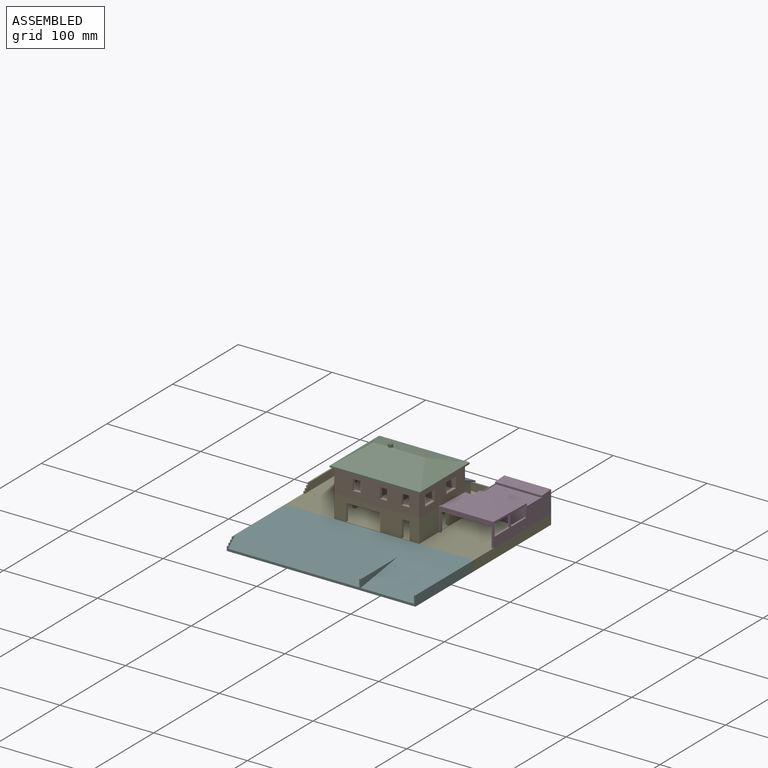
[diagram: assembled view]
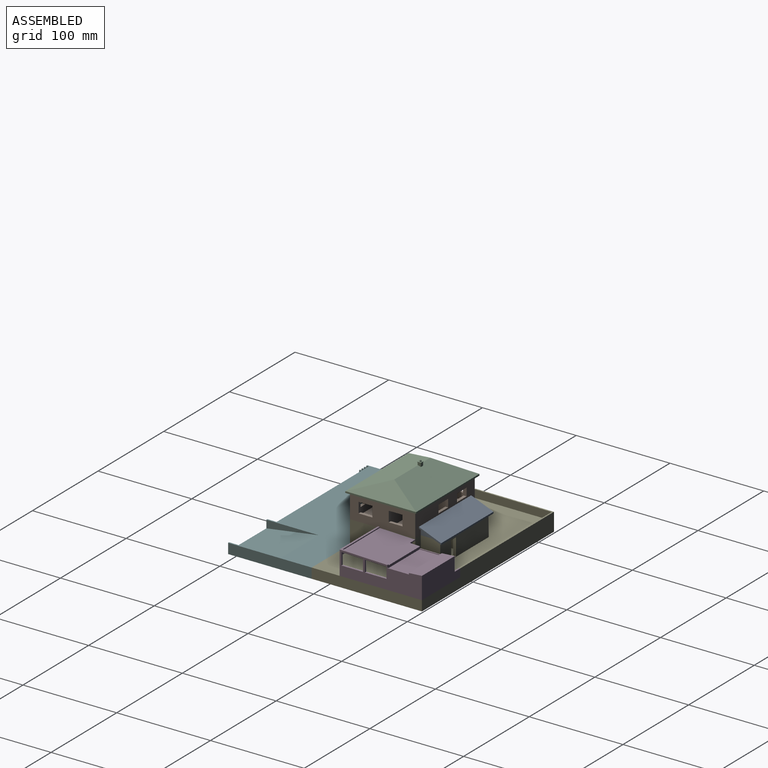
[diagram: assembled view, second angle]
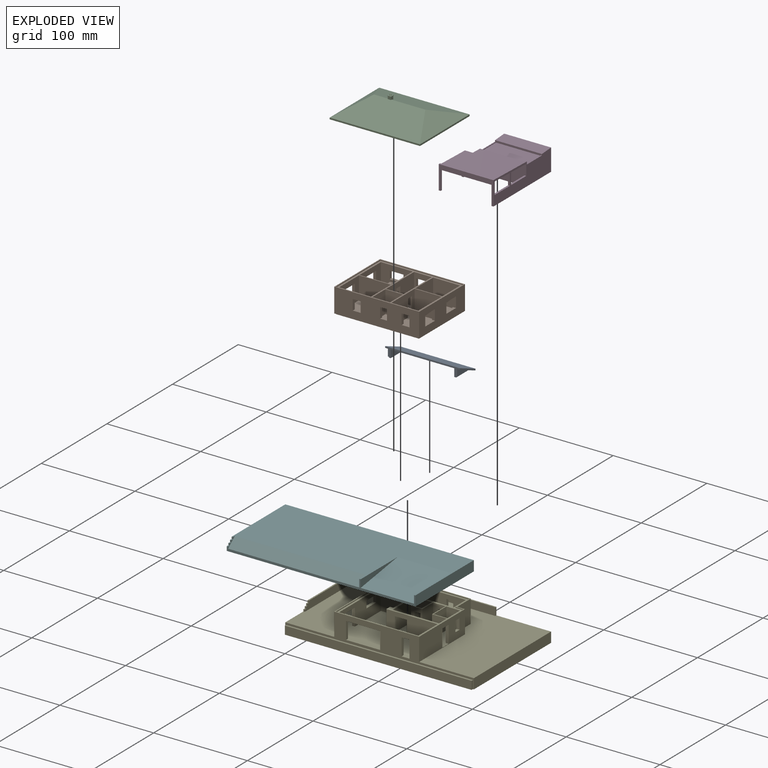
[diagram: exploded view]
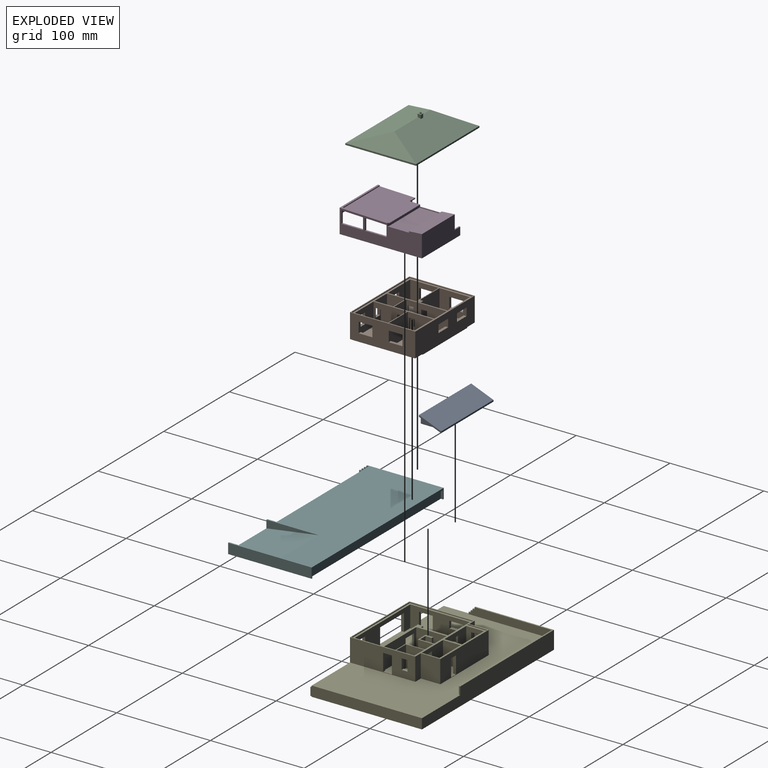
[diagram: exploded view, second angle]
ASSEMBLY  parts=6 mates=5
PART A: 20 faces, bbox 79.7x23.8x11.2 mm
  f0: plane 18.83x7.53mm, normal (-1,0,0), area 70.9mm2, adj f3,f6,f19
  f1: plane 18.83x7.53mm, normal (1,0,0), area 70.9mm2, adj f3,f6,f19
  f2: plane 71.68x19.73mm, normal (0,0,-1), area 208.3mm2, adj f3,f4,f10,f12,f15,f16,f17
  f3: plane 79.71x10mm, normal (0,-1,0), area 181.8mm2, adj f0,f1,f2,f6,f7,f8,f9,f10
  f4: plane 67.79x1.22mm, normal (0,-1,0), area 82.5mm2, adj f2,f10,f11,f12
  f5: plane 79.71x1.67mm, normal (0,1,0), area 132.8mm2, adj f6,f7,f8,f9
  f6: plane 79.71x23.75mm, normal (0,-0.37,-0.93), area 381.3mm2, adj f0,f1,f3,f5,f7,f9,f13,f14
  f7: plane 23.75x11.17mm, normal (-1,0,0), area 39.6mm2, adj f3,f5,f6,f8
  f8: plane 79.71x23.75mm, normal (0,0.37,0.93), area 2038.9mm2, adj f3,f5,f7,f9
  f9: plane 23.75x11.17mm, normal (1,0,0), area 39.6mm2, adj f3,f5,f6,f8
  f10: plane 17.79x8.33mm, normal (-1,0,0), area 85mm2, adj f2,f3,f4,f11
  f11: plane 67.79x17.79mm, normal (0,-0.37,-0.93), area 1299mm2, adj f3,f4,f10,f12
  f12: plane 17.79x8.33mm, normal (1,0,0), area 85mm2, adj f2,f3,f4,f11
  f13: plane 2x0.8mm, normal (1,0,0), area 0.8mm2, adj f6,f18,f19
  f14: plane 2x0.8mm, normal (-1,0,0), area 0.8mm2, adj f6,f18,f19
  f15: plane 19.73x0.8mm, normal (1,0,0), area 15.8mm2, adj f2,f3,f16,f19
  f16: plane 71.68x0.8mm, normal (0,1,0), area 57.3mm2, adj f2,f15,f17,f19
  f17: plane 19.73x0.8mm, normal (-1,0,0), area 15.8mm2, adj f2,f3,f16,f19
  f18: plane 73.88x0.8mm, normal (0,-1,0), area 59.1mm2, adj f6,f13,f14,f19
  f19: plane 73.88x20.83mm, normal (0,0,-1), area 124.7mm2, adj f0,f1,f3,f13,f14,f15,f16,f17
PART B: 107 faces, bbox 90.5x69.7x26.6 mm
  f0: plane 88.54x67.71mm, normal (0,0,1), area 897.3mm2, adj f65,f66,f67,f68,f69,f70,f71,f72
  f1: plane 69.71x25.83mm, normal (1,0,0), area 1472.7mm2, adj f3,f4,f44,f45,f46,f47,f61,f62
  f2: plane 69.71x25.83mm, normal (-1,0,0), area 1472.7mm2, adj f3,f4,f18,f19,f20,f21,f36,f37
  f3: plane 90.54x25.83mm, normal (0,-1,0), area 2067.9mm2, adj f1,f2,f32,f33,f34,f35,f40,f41
  f4: plane 90.54x26.63mm, normal (0,1,0), area 2148.1mm2, adj f1,f2,f5,f13,f14,f15,f16,f22
  f5: plane 88.34x68.61mm, normal (0,0,-1), area 5767mm2, adj f4,f7,f8,f9,f10,f17,f77,f78
  f6: plane 8.33x6.88mm, normal (0,0.77,0.64), area 23.4mm2, adj f7,f8,f9,f11
  f7: plane 2.17x1.67mm, normal (0,1,0), area 3.6mm2, adj f5,f6,f8,f9
  f8: plane 10x6.88mm, normal (-1,0,0), area 40.1mm2, adj f5,f6,f7,f10
  f9: plane 10x7.83mm, normal (1,0,0), area 48.1mm2, adj f5,f6,f7,f11,f12,f17,f89
  f10: plane 10x8.33mm, normal (0,1,0), area 83.3mm2, adj f5,f8,f11,f79
  f11: plane 10.5x0.96mm, normal (0,0,1), area 10.1mm2, adj f6,f9,f10,f12,f79
  f12: plane 10.5x8.33mm, normal (0,-1,0), area 87.5mm2, adj f9,f11,f79,f89
  f13: plane 8.33x3.04mm, normal (1,0,0), area 25.3mm2, adj f4,f14,f16,f78
  f14: plane 14.67x3.04mm, normal (0,0,1), area 44.6mm2, adj f4,f13,f15,f78
  f15: plane 8.33x3.04mm, normal (-1,0,0), area 25.3mm2, adj f4,f14,f16,f78
  f16: plane 14.67x3.04mm, normal (0,0,-1), area 44.6mm2, adj f4,f13,f15,f78
  f17: plane 8.33x1.67mm, normal (0,1,0), area 13.9mm2, adj f5,f9,f77,f89
  f18: plane 11.17x3.04mm, normal (0,1,0), area 34mm2, adj f2,f19,f21,f84
  f19: plane 14.67x3.04mm, normal (0,0,1), area 44.6mm2, adj f2,f18,f20,f84
  f20: plane 11.17x3.04mm, normal (0,-1,0), area 34mm2, adj f2,f19,f21,f84
  f21: plane 14.67x3.04mm, normal (0,0,-1), area 44.6mm2, adj f2,f18,f20,f84
  f22: plane 8.33x3.04mm, normal (1,0,0), area 25.3mm2, adj f4,f23,f25,f83
  f23: plane 14.67x3.04mm, normal (0,0,1), area 44.6mm2, adj f4,f22,f24,f83
  f24: plane 8.33x3.04mm, normal (-1,0,0), area 25.3mm2, adj f4,f23,f25,f83
  f25: plane 14.67x3.04mm, normal (0,0,-1), area 44.6mm2, adj f4,f22,f24,f83
  f26: plane 18.33x1.46mm, normal (0,1,0), area 26.7mm2, adj f27,f79,f82,f89
  f27: plane 6.25x1.46mm, normal (0,0,-1), area 9.1mm2, adj f26,f28,f79,f82
  f28: plane 18.33x1.46mm, normal (0,-1,0), area 26.7mm2, adj f27,f79,f82,f89
  f29: plane 18.33x1.46mm, normal (0,1,0), area 26.7mm2, adj f30,f76,f79,f89
  f30: plane 6.25x1.46mm, normal (0,0,-1), area 9.1mm2, adj f29,f31,f76,f79
  f31: plane 18.33x1.46mm, normal (0,-1,0), area 26.7mm2, adj f30,f76,f79,f89
  f32: plane 8.42x3.04mm, normal (0,0,-1), area 25.6mm2, adj f3,f33,f35,f75
  f33: plane 11.17x3.04mm, normal (-1,0,0), area 34mm2, adj f3,f32,f34,f75
  f34: plane 8.42x3.04mm, normal (0,0,1), area 25.6mm2, adj f3,f33,f35,f75
  f35: plane 11.17x3.04mm, normal (1,0,0), area 34mm2, adj f3,f32,f34,f75
  f36: plane 14.67x3.04mm, normal (0,0,-1), area 44.6mm2, adj f2,f37,f39,f74
  f37: plane 11.17x3.04mm, normal (0,1,0), area 34mm2, adj f2,f36,f38,f74
  f38: plane 14.67x3.04mm, normal (0,0,1), area 44.6mm2, adj f2,f37,f39,f74
  f39: plane 11.17x3.04mm, normal (0,-1,0), area 34mm2, adj f2,f36,f38,f74
  f40: plane 7.38x3.04mm, normal (0,0,-1), area 22.4mm2, adj f3,f41,f43,f66
  f41: plane 11.17x3.04mm, normal (-1,0,0), area 34mm2, adj f3,f40,f42,f66
  f42: plane 7.38x3.04mm, normal (0,0,1), area 22.4mm2, adj f3,f41,f43,f66
  f43: plane 11.17x3.04mm, normal (1,0,0), area 34mm2, adj f3,f40,f42,f66
  f44: plane 11.17x3.04mm, normal (0,-1,0), area 34mm2, adj f1,f45,f47,f71
  f45: plane 14.67x3.04mm, normal (0,0,1), area 44.6mm2, adj f1,f44,f46,f71
  f46: plane 11.17x3.04mm, normal (0,1,0), area 34mm2, adj f1,f45,f47,f71
  f47: plane 14.67x3.04mm, normal (0,0,-1), area 44.6mm2, adj f1,f44,f46,f71
  f48: plane 8.42x3.04mm, normal (0,0,-1), area 25.6mm2, adj f3,f49,f51,f70
  f49: plane 11.17x3.04mm, normal (-1,0,0), area 34mm2, adj f3,f48,f50,f70
  f50: plane 8.42x3.04mm, normal (0,0,1), area 25.6mm2, adj f3,f49,f51,f70
  f51: plane 11.17x3.04mm, normal (1,0,0), area 34mm2, adj f3,f48,f50,f70
  f52: plane 18.33x1.46mm, normal (0,-1,0), area 26.7mm2, adj f53,f67,f69,f89
  f53: plane 6.25x1.46mm, normal (0,0,-1), area 9.1mm2, adj f52,f54,f67,f69
  f54: plane 18.33x1.46mm, normal (0,1,0), area 26.7mm2, adj f53,f67,f69,f89
  f55: plane 18.33x1.46mm, normal (0,-1,0), area 26.7mm2, adj f56,f69,f77,f89
  f56: plane 6.25x1.46mm, normal (0,0,-1), area 9.1mm2, adj f55,f57,f69,f77
  f57: plane 18.33x1.46mm, normal (0,1,0), area 26.7mm2, adj f56,f69,f77,f89
  f58: plane 18.33x1.46mm, normal (0,-1,0), area 26.7mm2, adj f59,f77,f89,f93
  f59: plane 6.25x1.46mm, normal (0,0,-1), area 9.1mm2, adj f58,f60,f77,f93
  f60: plane 18.33x1.46mm, normal (0,1,0), area 26.7mm2, adj f59,f77,f89,f93
  f61: plane 11.17x3.04mm, normal (0,-1,0), area 34mm2, adj f1,f62,f64,f91
  f62: plane 14.67x3.04mm, normal (0,0,1), area 44.6mm2, adj f1,f61,f63,f91
  f63: plane 11.17x3.04mm, normal (0,1,0), area 34mm2, adj f1,f62,f64,f91
  f64: plane 14.67x3.04mm, normal (0,0,-1), area 44.6mm2, adj f1,f61,f63,f91
  f65: plane 23.96x19.88mm, normal (1,0,0), area 476.2mm2, adj f0,f66,f68,f89
  f66: plane 23.96x18.83mm, normal (0,1,0), area 368.9mm2, adj f0,f40,f41,f42,f43,f65,f67,f89
  f67: plane 23.96x19.88mm, normal (-1,0,0), area 361.6mm2, adj f0,f52,f53,f54,f66,f68,f89
  f68: plane 23.96x18.83mm, normal (0,-1,0), area 451.2mm2, adj f0,f65,f67,f89
  f69: plane 35.5x23.96mm, normal (1,0,0), area 621.4mm2, adj f0,f52,f53,f54,f55,f56,f57,f70
  f70: plane 28.75x23.96mm, normal (0,1,0), area 594.8mm2, adj f0,f48,f49,f50,f51,f69,f71,f89
  f71: plane 35.5x23.96mm, normal (-1,0,0), area 686.7mm2, adj f0,f44,f45,f46,f47,f70,f72,f89
  f72: plane 28.75x23.96mm, normal (0,-1,0), area 688.8mm2, adj f0,f69,f71,f89
  f73: plane 33.96x23.96mm, normal (0,-1,0), area 813.6mm2, adj f0,f74,f76,f89
  f74: plane 30.29x23.96mm, normal (1,0,0), area 562mm2, adj f0,f36,f37,f38,f39,f73,f75,f89
  f75: plane 33.96x23.96mm, normal (0,1,0), area 719.6mm2, adj f0,f32,f33,f34,f35,f74,f76,f89
  f76: plane 30.29x23.96mm, normal (-1,0,0), area 611.2mm2, adj f0,f29,f30,f31,f73,f75,f89
  f77: plane 42.79x25.63mm, normal (-1,0,0), area 821.4mm2, adj f0,f5,f17,f55,f56,f57,f58,f59
  f78: plane 25.63x18.83mm, normal (0,-1,0), area 360.4mm2, adj f0,f5,f13,f14,f15,f16,f77,f79
  f79: plane 42.79x25.63mm, normal (1,0,0), area 813.4mm2, adj f0,f5,f10,f11,f12,f26,f27,f28
  f80: plane 23.96x18.83mm, normal (0,1,0), area 451.2mm2, adj f0,f77,f79,f89
  f81: plane 23.96x0.54mm, normal (0,1,0), area 13mm2, adj f0,f82,f88,f89
  f82: plane 32.38x23.96mm, normal (-1,0,0), area 661.1mm2, adj f0,f26,f27,f28,f81,f83,f89
  f83: plane 33.96x23.96mm, normal (0,-1,0), area 691.4mm2, adj f0,f22,f23,f24,f25,f82,f84,f89
  f84: plane 32.38x23.96mm, normal (1,0,0), area 611.9mm2, adj f0,f18,f19,f20,f21,f83,f85,f89
  f85: plane 29.92x23.96mm, normal (0,1,0), area 716.8mm2, adj f0,f84,f86,f89
  f86: plane 23.96x3.5mm, normal (-1,0,0), area 83.9mm2, adj f0,f85,f87,f89
  f87: plane 23.96x3.5mm, normal (0,1,0), area 83.9mm2, adj f0,f86,f88,f89
  f88: plane 23.96x3.5mm, normal (1,0,0), area 83.9mm2, adj f0,f81,f87,f89
  f89: plane 84.46x63.63mm, normal (0,0,1), area 4846.8mm2, adj f9,f12,f17,f26,f28,f29,f31,f52
  f90: plane 28.75x23.96mm, normal (0,1,0), area 688.8mm2, adj f0,f89,f91,f93
  f91: plane 27.17x23.96mm, normal (-1,0,0), area 487.1mm2, adj f0,f61,f62,f63,f64,f89,f90,f92
  f92: plane 28.75x23.96mm, normal (0,-1,0), area 688.8mm2, adj f0,f89,f91,f93
  f93: plane 27.17x23.96mm, normal (1,0,0), area 536.3mm2, adj f0,f58,f59,f60,f89,f90,f92
  f94: plane 67.51x0.8mm, normal (1,0,0), area 54mm2, adj f5,f95,f100,f101
  f95: plane 10.2x0.8mm, normal (0,1,0), area 8.2mm2, adj f5,f94,f96,f101
  f96: plane 1.1x0.8mm, normal (1,0,0), area 0.9mm2, adj f4,f5,f95,f101
  f97: plane 1.1x0.8mm, normal (-1,0,0), area 0.9mm2, adj f4,f5,f98,f101
  f98: plane 10.2x0.8mm, normal (0,1,0), area 8.2mm2, adj f5,f97,f99,f101
  f99: plane 67.51x0.8mm, normal (-1,0,0), area 54mm2, adj f5,f98,f100,f101
  f100: plane 88.34x0.8mm, normal (0,-1,0), area 70.7mm2, adj f5,f94,f99,f101
  f101: plane 90.54x69.71mm, normal (0,0,-1), area 273mm2, adj f1,f2,f3,f4,f94,f95,f96,f97
  f102: plane 67.71x1mm, normal (1,0,0), area 67.7mm2, adj f0,f103,f105,f106
  f103: plane 88.54x1mm, normal (0,-1,0), area 88.5mm2, adj f0,f102,f104,f106
  f104: plane 67.71x1mm, normal (-1,0,0), area 67.7mm2, adj f0,f103,f105,f106
  f105: plane 88.54x1mm, normal (0,1,0), area 88.5mm2, adj f0,f102,f104,f106
  f106: plane 90.54x69.71mm, normal (0,0,1), area 316.5mm2, adj f1,f2,f3,f4,f102,f103,f104,f105
PART C: 53 faces, bbox 96.4x75.5x20.5 mm
  f0: plane 90.54x0.91mm, normal (0,-1,0), area 82.2mm2, adj f1,f2,f10,f36
  f1: plane 69.71x1.84mm, normal (-1,0,0), area 128mm2, adj f0,f3,f15,f18,f21,f36
  f2: plane 69.71x1.84mm, normal (1,0,0), area 128mm2, adj f0,f3,f5,f9,f11,f36
  f3: plane 90.54x0.91mm, normal (0,1,0), area 82.2mm2, adj f1,f2,f8,f36
  f4: plane 75.54x1.67mm, normal (1,0,0), area 125.9mm2, adj f7,f11,f13,f14
  f5: plane 1.38x0.93mm, normal (0,-1,0), area 0.6mm2, adj f2,f8,f11
  f6: plane 96.38x37.77mm, normal (0,0.34,0.94), area 3021.3mm2, adj f7,f12,f13,f16,f22,f24,f25
  f7: plane 96.38x1.67mm, normal (0,1,0), area 160.6mm2, adj f4,f6,f8,f17
  f8: plane 96.38x2.92mm, normal (0,-0.34,-0.94), area 293.6mm2, adj f3,f5,f7,f11,f18,f21
  f9: plane 1.38x0.93mm, normal (0,1,0), area 0.6mm2, adj f2,f10,f11
  f10: plane 96.38x2.92mm, normal (0,0.34,-0.94), area 293.6mm2, adj f0,f9,f11,f14,f15,f18
  f11: plane 75.54x2.92mm, normal (-0.56,0,-0.83), area 250.7mm2, adj f2,f4,f5,f8,f9,f10
  f12: plane 96.38x37.77mm, normal (0,-0.34,0.94), area 3030.2mm2, adj f6,f13,f14,f16,f22,f23,f24
  f13: plane 75.54x20.75mm, normal (0.54,0,0.84), area 934.1mm2, adj f4,f6,f12
  f14: plane 96.38x1.67mm, normal (0,-1,0), area 160.6mm2, adj f4,f10,f12,f17
  f15: plane 1.38x0.93mm, normal (0,1,0), area 0.6mm2, adj f1,f10,f18
  f16: plane 75.54x20.75mm, normal (-0.54,0,0.84), area 934.1mm2, adj f6,f12,f17
  f17: plane 75.54x1.67mm, normal (-1,0,0), area 125.9mm2, adj f7,f14,f16,f18
  f18: plane 75.54x2.92mm, normal (0.56,0,-0.83), area 250.7mm2, adj f1,f8,f10,f15,f17,f21
  f19: cone r=0.75mm half-angle=18.4deg, axis (0,0,-1), area 9.9mm2, adj f20,f31
  f20: plane 1.5x1.5mm, normal (0,0,1), area 1.8mm2, adj f19
  f21: plane 1.38x0.93mm, normal (0,-1,0), area 0.6mm2, adj f1,f8,f18
  f22: plane 3.8x3.5mm, normal (-1,0,0), area 11.2mm2, adj f6,f12,f23,f25,f26
  f23: plane 3.5x2.95mm, normal (0,-1,0), area 10.3mm2, adj f12,f22,f24,f26
  f24: plane 3.8x3.5mm, normal (1,0,0), area 11.2mm2, adj f6,f12,f23,f25,f26
  f25: plane 3.8x3.5mm, normal (0,1,0), area 13.3mm2, adj f6,f22,f24,f26
  f26: plane 4x4mm, normal (0,0,-1), area 3.7mm2, adj f22,f23,f24,f25,f27,f28,f29,f30
  f27: plane 4x0.42mm, normal (0,1,0), area 1.7mm2, adj f26,f28,f30,f31
  f28: plane 4x0.42mm, normal (1,0,0), area 1.7mm2, adj f26,f27,f29,f31
  f29: plane 4x0.42mm, normal (0,-1,0), area 1.7mm2, adj f26,f28,f30,f31
  f30: plane 4x0.42mm, normal (-1,0,0), area 1.7mm2, adj f26,f27,f29,f31
  f31: plane 4x4mm, normal (0,0,1), area 11.1mm2, adj f19,f27,f28,f29,f30
  f32: plane 67.31x0.8mm, normal (-1,0,0), area 53.8mm2, adj f33,f35,f36,f37
  f33: plane 88.14x0.8mm, normal (0,-1,0), area 70.5mm2, adj f32,f34,f36,f37
  f34: plane 67.31x0.8mm, normal (1,0,0), area 53.8mm2, adj f33,f35,f36,f37
  f35: plane 88.14x0.8mm, normal (0,1,0), area 70.5mm2, adj f32,f34,f36,f37
  f36: plane 90.54x69.71mm, normal (0,0,-1), area 378.8mm2, adj f0,f1,f2,f3,f32,f33,f34,f35
  f37: plane 88.14x67.31mm, normal (0,0,-1), area 5932.7mm2, adj f32,f33,f34,f35
  f38: plane 12.42x3.5mm, normal (1,0,0), area 41.9mm2, adj f39,f40,f41,f42,f43
  f39: plane 11.37x3.5mm, normal (0,1,0), area 39.8mm2, adj f38,f40,f43,f44
  f40: plane 84.46x63.63mm, normal (0,0,1), area 5361.4mm2, adj f38,f39,f41,f44,f45,f46,f47,f48
  f41: plane 12.22x3.5mm, normal (0,-1,0), area 42.8mm2, adj f38,f40,f42,f44
  f42: plane 88.6x31.81mm, normal (0,0.34,-0.94), area 2465.5mm2, adj f38,f41,f43,f44,f45,f46,f48,f49
  f43: plane 88.6x31.81mm, normal (0,-0.34,-0.94), area 2456.6mm2, adj f38,f39,f42,f44,f46,f47,f48,f49
  f44: plane 12.42x3.5mm, normal (-1,0,0), area 41.9mm2, adj f39,f40,f41,f42,f43
  f45: plane 84.46x1.08mm, normal (0,1,0), area 91.5mm2, adj f40,f42,f46,f48
  f46: plane 63.63x1.58mm, normal (-1,0,0), area 100mm2, adj f40,f42,f43,f45,f47,f51
  f47: plane 84.46x1.08mm, normal (0,-1,0), area 91.5mm2, adj f40,f43,f46,f48
  f48: plane 63.63x1.58mm, normal (1,0,0), area 100mm2, adj f40,f42,f43,f45,f47,f50
  f49: plane 60.82x16.06mm, normal (0.56,0,-0.83), area 589.1mm2, adj f42,f43,f50
  f50: plane 60.82x2.07mm, normal (0,0,1), area 126mm2, adj f42,f43,f48,f49
  f51: plane 60.82x2.07mm, normal (0,0,1), area 126mm2, adj f42,f43,f46,f52
  f52: plane 60.82x16.06mm, normal (-0.56,0,-0.83), area 589.1mm2, adj f42,f43,f51
PART D: 55 faces, bbox 58.3x87.8x25.4 mm
  f0: plane 2x2mm, normal (0,0,-1), area 4mm2, adj f7,f10,f11,f40
  f1: plane 50x3.6mm, normal (0,1,0), area 129.9mm2, adj f2,f3,f4,f8,f41,f42,f43,f44
  f2: plane 48.96x2.42mm, normal (-1,0,0), area 49.7mm2, adj f1,f4,f6,f8
  f3: plane 87.83x25.42mm, normal (1,0,0), area 1496.2mm2, adj f1,f4,f5,f7,f9,f10,f23,f24
  f4: plane 48.96x2mm, normal (0,0.03,1), area 98mm2, adj f1,f2,f3,f5
  f5: plane 58.33x2mm, normal (0,0,1), area 116.7mm2, adj f3,f4,f6,f7,f11
  f6: plane 56.33x1.02mm, normal (0,1,0), area 57.2mm2, adj f2,f5,f8,f11
  f7: plane 58.33x25.42mm, normal (0,-1,0), area 373.3mm2, adj f0,f3,f5,f11,f38,f39,f40,f53
  f8: plane 56.33x48.96mm, normal (0,0.03,1), area 2667.1mm2, adj f1,f2,f6,f11,f50,f51
  f9: plane 58.33x48mm, normal (0,-0.03,-1), area 2709.1mm2, adj f3,f10,f11,f25,f26,f27,f28,f29
  f10: plane 58.33x23.44mm, normal (0,1,0), area 237.4mm2, adj f0,f3,f9,f11,f24,f38,f39,f40
  f11: plane 39.92x25.42mm, normal (-1,0,0), area 131.8mm2, adj f0,f5,f6,f7,f8,f9,f10,f27
  f12: plane 48.08x22.92mm, normal (0,0,-1), area 1101.9mm2, adj f14,f15,f16,f17
  f13: plane 48.08x1.85mm, normal (0,-1,0), area 88.8mm2, adj f18,f19,f20,f21
  f14: plane 48.08x18.33mm, normal (0,-1,0), area 881.5mm2, adj f12,f15,f17,f33
  f15: plane 22.92x18.33mm, normal (-1,0,0), area 420.1mm2, adj f12,f14,f16,f33
  f16: plane 48.08x18.33mm, normal (0,1,0), area 881.5mm2, adj f12,f15,f17,f33
  f17: plane 22.92x18.33mm, normal (1,0,0), area 281.2mm2, adj f12,f14,f16,f30,f31,f32,f33
  f18: plane 12.04x1.85mm, normal (-1,0,0), area 16.9mm2, adj f13,f19,f21,f35
  f19: plane 48.08x12.04mm, normal (0,0.07,-1), area 580.6mm2, adj f13,f18,f20,f35
  f20: plane 12.04x1.85mm, normal (1,0,0), area 16.9mm2, adj f13,f19,f21,f35,f36
  f21: plane 48.08x12.04mm, normal (0,0,1), area 29.8mm2, adj f13,f18,f20,f22,f35,f37
  f22: plane 21.08x11.54mm, normal (-1,0,0), area 243.3mm2, adj f21,f35,f37,f53
  f23: plane 23x2mm, normal (0,0,1), area 46mm2, adj f3,f26,f34,f38
  f24: plane 23x2mm, normal (0,0,1), area 46mm2, adj f3,f10,f25,f38
  f25: plane 12.38x2mm, normal (0,-1,0), area 24.8mm2, adj f3,f9,f24,f38
  f26: plane 12.32x2mm, normal (0,1,0), area 24.6mm2, adj f3,f9,f23,f38
  f27: plane 22.46x2mm, normal (0,1,0), area 44.9mm2, adj f9,f11,f28,f52
  f28: plane 22.52x2mm, normal (1,0,0), area 45mm2, adj f9,f27,f29,f52
  f29: plane 22.52x2mm, normal (0,-1,0), area 45mm2, adj f9,f11,f28,f52
  f30: plane 16.67x0.96mm, normal (0,1,0), area 16mm2, adj f17,f31,f33,f50
  f31: plane 8.33x0.96mm, normal (0,0,-1), area 8mm2, adj f17,f30,f32,f50
  f32: plane 16.67x0.96mm, normal (0,-1,0), area 16mm2, adj f17,f31,f33,f50
  f33: plane 49.04x22.92mm, normal (0,0,1), area 1109.9mm2, adj f14,f15,f16,f17,f30,f32,f50
  f34: plane 50x22.09mm, normal (0,-1,0), area 1083.5mm2, adj f3,f9,f23,f38,f50,f53
  f35: plane 49.04x22.04mm, normal (0,1,0), area 1069.5mm2, adj f18,f19,f20,f21,f22,f36,f50,f53
  f36: plane 11.54x0.96mm, normal (0,0,-1), area 11.1mm2, adj f20,f35,f37,f50
  f37: plane 56.88x21.08mm, normal (0,-1,0), area 1092.9mm2, adj f21,f22,f36,f47,f50,f53,f54
  f38: plane 50x22.79mm, normal (-1,0,0), area 565.5mm2, adj f7,f9,f10,f23,f24,f25,f26,f34
  f39: plane 54.33x2mm, normal (0,0,-1), area 108.7mm2, adj f7,f10,f38,f40
  f40: plane 20.42x2mm, normal (1,0,0), area 40.8mm2, adj f0,f7,f10,f39
  f41: plane 22.92x0.96mm, normal (0,0,1), area 22mm2, adj f1,f42,f46,f50
  f42: plane 22.92x0.67mm, normal (1,0,0), area 15.3mm2, adj f1,f41,f43,f46
  f43: plane 48.08x22.92mm, normal (0,0,1), area 1101.9mm2, adj f1,f42,f44,f46
  f44: plane 22.92x0.67mm, normal (-1,0,0), area 15.3mm2, adj f1,f43,f45,f46
  f45: plane 22.92x0.96mm, normal (0,0,1), area 22mm2, adj f1,f3,f44,f46
  f46: plane 50x2.04mm, normal (0,-1,0), area 100.8mm2, adj f3,f41,f42,f43,f44,f45,f48,f50
  f47: plane 8.33x1.46mm, normal (0,0,1), area 12.2mm2, adj f37,f49,f50,f54
  f48: plane 50x13.96mm, normal (0,-0.07,1), area 699.6mm2, adj f3,f46,f49,f50
  f49: plane 58.33x23.42mm, normal (0,1,0), area 1240.3mm2, adj f3,f47,f48,f50,f53,f54
  f50: plane 47.92x23.42mm, normal (-1,0,0), area 440.5mm2, adj f1,f8,f9,f30,f31,f32,f33,f34
  f51: plane 8.33x0.94mm, normal (0,1,0), area 7.9mm2, adj f8,f9,f11,f50
  f52: plane 2x2mm, normal (0,0,-1), area 4mm2, adj f11,f27,f28,f29
  f53: plane 87.83x58.33mm, normal (0,0,-1), area 1443.6mm2, adj f3,f7,f22,f34,f35,f37,f38,f49
  f54: plane 8.33x1.46mm, normal (-1,0,0), area 12.2mm2, adj f37,f47,f49,f53
PART E: 115 faces, bbox 201.2x119.6x35.2 mm
  f0: plane 201.17x117.63mm, normal (0,0,1), area 15474.2mm2, adj f6,f7,f8,f9,f10,f97,f98,f99
  f1: plane 199.17x8.73mm, normal (0,-1,0), area 1739.4mm2, adj f2,f3,f4,f5
  f2: plane 8.73x2mm, normal (1,0,0), area 17.5mm2, adj f1,f3,f5,f7
  f3: plane 199.17x2mm, normal (0,0,1), area 398.3mm2, adj f1,f2,f4,f7
  f4: plane 8.73x2mm, normal (-1,0,0), area 17.5mm2, adj f1,f3,f5,f7
  f5: plane 201.17x119.63mm, normal (0,0,-1), area 24060.6mm2, adj f1,f2,f4,f6,f7,f8,f9
  f6: plane 117.63x19.17mm, normal (-1,0,0), area 1998.2mm2, adj f0,f5,f7,f8,f105,f106,f107,f108
  f7: plane 201.17x35.17mm, normal (0,-1,0), area 1821.9mm2, adj f0,f2,f3,f4,f5,f6,f9,f10
  f8: plane 201.17x19.17mm, normal (0,1,0), area 3369.6mm2, adj f0,f5,f6,f9,f104,f113
  f9: plane 117.63x10.83mm, normal (1,0,0), area 1274.3mm2, adj f0,f5,f7,f8
  f10: plane 69.71x24.33mm, normal (1,0,0), area 1452.1mm2, adj f0,f7,f81,f82,f83,f84,f85,f86
  f11: plane 6.25x1.46mm, normal (0,0,-1), area 9.1mm2, adj f19,f26,f27,f28
  f12: plane 7.29x2mm, normal (0,0,-1), area 14.6mm2, adj f30,f34,f35,f36
  f13: plane 6.25x0.96mm, normal (0,0,-1), area 6mm2, adj f38,f42,f43,f44
  f14: plane 12.67x2mm, normal (0,0,-1), area 25.3mm2, adj f22,f46,f47,f48
  f15: plane 7.29x2mm, normal (0,0,-1), area 14.6mm2, adj f52,f56,f57,f58
  f16: plane 22.92x6.88mm, normal (1,0,0), area 157.6mm2, adj f17,f26,f60,f88
  f17: plane 22.92x2.17mm, normal (0,1,0), area 49.7mm2, adj f16,f18,f60,f88
  f18: plane 22.92x8.33mm, normal (-1,0,0), area 191mm2, adj f17,f28,f60,f88
  f19: plane 18.33x1.46mm, normal (1,0,0), area 26.7mm2, adj f11,f26,f28,f88
  f20: plane 22.92x3.5mm, normal (0,1,0), area 80.2mm2, adj f21,f59,f60,f88
  f21: plane 22.92x5.5mm, normal (-1,0,0), area 126mm2, adj f20,f48,f60,f88
  f22: plane 18.33x2mm, normal (1,0,0), area 36.7mm2, adj f14,f46,f48,f88
  f23: plane 32.38x22.92mm, normal (1,0,0), area 741.9mm2, adj f24,f46,f60,f88
  f24: plane 22.92x18.83mm, normal (0,-1,0), area 431.6mm2, adj f23,f25,f60,f88
  f25: plane 22.92x15.21mm, normal (-1,0,0), area 348.5mm2, adj f24,f26,f60,f88
  f26: plane 22.92x8.33mm, normal (0,1,0), area 76.4mm2, adj f11,f16,f19,f25,f27,f60,f88
  f27: plane 18.33x1.46mm, normal (-1,0,0), area 26.7mm2, adj f11,f26,f28,f88
  f28: plane 22.92x11.96mm, normal (0,-1,0), area 159.5mm2, adj f11,f18,f19,f27,f29,f60,f88
  f29: plane 22.92x16.67mm, normal (1,0,0), area 381.9mm2, adj f28,f36,f60,f88
  f30: plane 18.33x2mm, normal (1,0,0), area 36.7mm2, adj f12,f34,f36,f88
  f31: plane 22.92x18.83mm, normal (1,0,0), area 431.6mm2, adj f32,f34,f60,f88
  f32: plane 32.38x22.92mm, normal (0,-1,0), area 606.7mm2, adj f31,f33,f60,f61,f62,f63,f88
  f33: plane 22.92x18.83mm, normal (-1,0,0), area 431.6mm2, adj f32,f34,f60,f88
  f34: plane 32.38x22.92mm, normal (0,1,0), area 608.2mm2, adj f12,f30,f31,f33,f35,f60,f88
  f35: plane 18.33x2mm, normal (-1,0,0), area 36.7mm2, adj f12,f34,f36,f88
  f36: plane 22.92x13.13mm, normal (0,-1,0), area 167.1mm2, adj f12,f29,f30,f35,f37,f60,f88
  f37: plane 22.92x20.29mm, normal (-1,0,0), area 465mm2, adj f36,f44,f60,f88
  f38: plane 18.33x0.96mm, normal (1,0,0), area 17.6mm2, adj f13,f42,f44,f88
  f39: plane 22.92x19.33mm, normal (1,0,0), area 443.1mm2, adj f40,f42,f60,f88
  f40: plane 22.92x14.67mm, normal (0,-1,0), area 336.1mm2, adj f39,f41,f60,f88
  f41: plane 22.92x19.33mm, normal (-1,0,0), area 372.3mm2, adj f40,f42,f60,f81,f82,f83,f84,f88
  f42: plane 22.92x14.67mm, normal (0,1,0), area 221.5mm2, adj f13,f38,f39,f41,f43,f60,f88
  f43: plane 18.33x0.96mm, normal (-1,0,0), area 17.6mm2, adj f13,f42,f44,f88
  f44: plane 22.92x15.63mm, normal (0,-1,0), area 243.5mm2, adj f13,f37,f38,f43,f45,f60,f88
  f45: plane 22.92x12.08mm, normal (-1,0,0), area 103.5mm2, adj f44,f46,f60,f85,f86,f87,f88
  f46: plane 49.04x22.92mm, normal (0,1,0), area 891.6mm2, adj f14,f22,f23,f45,f47,f60,f88
  f47: plane 18.33x2mm, normal (-1,0,0), area 36.7mm2, adj f14,f46,f48,f88
  f48: plane 54.54x22.92mm, normal (0,-1,0), area 1017.7mm2, adj f14,f21,f22,f47,f49,f60,f88
  f49: plane 29.25x22.92mm, normal (-1,0,0), area 670.3mm2, adj f48,f50,f60,f88
  f50: plane 84.46x22.92mm, normal (0,1,0), area 1114.3mm2, adj f49,f51,f60,f75,f76,f77,f78,f79
  f51: plane 63.63x22.92mm, normal (1,0,0), area 1079.2mm2, adj f50,f58,f60,f68,f69,f70,f71,f72
  f52: plane 18.33x2mm, normal (1,0,0), area 36.7mm2, adj f15,f56,f58,f88
  f53: plane 22.92x18.83mm, normal (1,0,0), area 337.6mm2, adj f54,f56,f60,f64,f65,f66,f67,f88
  f54: plane 33.42x22.92mm, normal (0,-1,0), area 765.8mm2, adj f53,f55,f60,f88
  f55: plane 22.92x18.83mm, normal (-1,0,0), area 431.6mm2, adj f54,f56,f60,f88
  f56: plane 33.42x22.92mm, normal (0,1,0), area 632.1mm2, adj f15,f52,f53,f55,f57,f60,f88
  f57: plane 18.33x2mm, normal (-1,0,0), area 36.7mm2, adj f15,f56,f58,f88
  f58: plane 33.42x22.92mm, normal (0,-1,0), area 632.1mm2, adj f15,f51,f52,f57,f59,f60,f88
  f59: plane 28.88x22.92mm, normal (-1,0,0), area 661.7mm2, adj f20,f58,f60,f88
  f60: plane 88.54x88.54mm, normal (0,0,1), area 1153.8mm2, adj f16,f17,f18,f20,f21,f23,f24,f25
  f61: plane 7.38x3.04mm, normal (0,0,-1), area 22.4mm2, adj f32,f62,f63,f98
  f62: plane 18.33x3.04mm, normal (-1,0,0), area 55.8mm2, adj f32,f61,f88,f98
  f63: plane 18.33x3.04mm, normal (1,0,0), area 55.8mm2, adj f32,f61,f88,f98
  f64: plane 11.17x3.04mm, normal (0,-1,0), area 34mm2, adj f53,f65,f67,f99
  f65: plane 8.42x3.04mm, normal (0,0,1), area 25.6mm2, adj f53,f64,f66,f99
  f66: plane 11.17x3.04mm, normal (0,1,0), area 34mm2, adj f53,f65,f67,f99
  f67: plane 8.42x3.04mm, normal (0,0,-1), area 25.6mm2, adj f53,f64,f66,f99
  f68: plane 18.33x3.04mm, normal (0,1,0), area 55.8mm2, adj f51,f69,f88,f101
  f69: plane 14.67x3.04mm, normal (0,0,-1), area 44.6mm2, adj f51,f68,f70,f101
  f70: plane 18.33x3.04mm, normal (0,-1,0), area 55.8mm2, adj f51,f69,f88,f101
  f71: plane 7.5x3.04mm, normal (0,-1,0), area 22.8mm2, adj f51,f72,f74,f101
  f72: plane 14.67x3.04mm, normal (0,0,1), area 44.6mm2, adj f51,f71,f73,f101
  f73: plane 7.5x3.04mm, normal (0,1,0), area 22.8mm2, adj f51,f72,f74,f101
  f74: plane 14.67x3.04mm, normal (0,0,-1), area 44.6mm2, adj f51,f71,f73,f101
  f75: plane 18.33x3.04mm, normal (-1,0,0), area 55.8mm2, adj f7,f50,f76,f88
  f76: plane 8.42x3.04mm, normal (0,0,-1), area 25.6mm2, adj f7,f50,f75,f77
  f77: plane 18.33x3.04mm, normal (1,0,0), area 55.8mm2, adj f7,f50,f76,f88
  f78: plane 36.38x3.04mm, normal (0,0,-1), area 110.6mm2, adj f7,f50,f79,f80
  f79: plane 18.33x3.04mm, normal (1,0,0), area 55.8mm2, adj f7,f50,f78,f88
  f80: plane 18.33x3.04mm, normal (-1,0,0), area 55.8mm2, adj f7,f50,f78,f88
  f81: plane 6.33x3.04mm, normal (0,0,-1), area 19.3mm2, adj f10,f41,f82,f84
  f82: plane 11.17x3.04mm, normal (0,1,0), area 34mm2, adj f10,f41,f81,f83
  f83: plane 6.33x3.04mm, normal (0,0,1), area 19.3mm2, adj f10,f41,f82,f84
  f84: plane 11.17x3.04mm, normal (0,-1,0), area 34mm2, adj f10,f41,f81,f83
  f85: plane 18.33x3.04mm, normal (0,-1,0), area 55.8mm2, adj f10,f45,f86,f88
  f86: plane 9.46x3.04mm, normal (0,0,-1), area 28.8mm2, adj f10,f45,f85,f87
  f87: plane 18.33x3.04mm, normal (0,1,0), area 55.8mm2, adj f10,f45,f86,f88
  f88: plane 90.54x90.54mm, normal (0,0,1), area 6640.3mm2, adj f7,f10,f16,f17,f18,f19,f20,f21
  f89: plane 20.83x1mm, normal (1,0,0), area 20.8mm2, adj f60,f90,f96,f102
  f90: plane 8.33x1mm, normal (0,-1,0), area 8.3mm2, adj f60,f89,f91,f102
  f91: plane 67.71x1mm, normal (1,0,0), area 67.7mm2, adj f60,f90,f92,f102
  f92: plane 88.54x1mm, normal (0,1,0), area 88.5mm2, adj f60,f91,f93,f102
  f93: plane 67.71x1mm, normal (-1,0,0), area 67.7mm2, adj f60,f92,f94,f102
  f94: plane 8.33x1mm, normal (0,-1,0), area 8.3mm2, adj f60,f93,f95,f102
  f95: plane 20.83x1mm, normal (-1,0,0), area 20.8mm2, adj f60,f94,f96,f102
  f96: plane 71.88x1mm, normal (0,-1,0), area 71.9mm2, adj f60,f89,f95,f102
  f97: plane 24.33x20.83mm, normal (1,0,0), area 506.9mm2, adj f0,f98,f102,f103
  f98: plane 73.88x24.33mm, normal (0,1,0), area 1662.4mm2, adj f0,f61,f62,f63,f88,f97,f99,f102
  f99: plane 24.33x20.83mm, normal (-1,0,0), area 413mm2, adj f0,f64,f65,f66,f67,f98,f100,f102
  f100: plane 24.33x8.33mm, normal (0,1,0), area 202.8mm2, adj f0,f99,f101,f102
  f101: plane 69.71x24.33mm, normal (-1,0,0), area 1317.3mm2, adj f0,f7,f68,f69,f70,f71,f72,f73
  f102: plane 90.54x90.54mm, normal (0,0,1), area 358.2mm2, adj f7,f10,f89,f90,f91,f92,f93,f94
  f103: plane 24.33x8.33mm, normal (0,1,0), area 202.8mm2, adj f0,f10,f97,f102
  f104: plane 8.33x1.46mm, normal (1,0,0), area 12.2mm2, adj f0,f8,f113,f114
  f105: plane 2.08x1.46mm, normal (0,0,1), area 3mm2, adj f6,f106,f111,f112
  f106: plane 2.08x1.46mm, normal (0,-1,0), area 3mm2, adj f6,f105,f107,f112
  f107: plane 2.08x1.46mm, normal (0,0,1), area 3mm2, adj f6,f106,f108,f112
  f108: plane 2.08x1.46mm, normal (0,-1,0), area 3mm2, adj f6,f107,f109,f112
  f109: plane 2.08x1.46mm, normal (0,0,1), area 3mm2, adj f6,f108,f110,f112
  f110: plane 2.08x1.46mm, normal (0,-1,0), area 3mm2, adj f6,f109,f112,f113
  f111: plane 2.08x1.46mm, normal (0,-1,0), area 3mm2, adj f0,f6,f105,f112
  f112: plane 88.54x8.33mm, normal (1,0,0), area 711.8mm2, adj f0,f105,f106,f107,f108,f109,f110,f111
  f113: plane 142.83x83.75mm, normal (0,0,1), area 328.3mm2, adj f6,f8,f104,f110,f112,f114
  f114: plane 141.38x8.33mm, normal (0,-1,0), area 1178.1mm2, adj f0,f104,f112,f113
PART F: 25 faces, bbox 201.2x89.2x10.8 mm
  f0: plane 201.17x10.83mm, normal (0,1,0), area 398.3mm2, adj f17,f18,f19,f20,f21,f22,f23
  f1: plane 2.5x2.08mm, normal (1,0,0), area 2.6mm2, adj f8,f11,f12
  f2: plane 2.5x2.08mm, normal (1,0,0), area 2.6mm2, adj f8,f13,f14
  f3: plane 2.5x2.08mm, normal (1,0,0), area 2.6mm2, adj f8,f15,f16
  f4: plane 55.83x8.33mm, normal (-1,0,0), area 232.6mm2, adj f5,f16,f20
  f5: plane 56.88x55.83mm, normal (0,-0.15,0.99), area 3210.7mm2, adj f4,f6,f16,f20
  f6: plane 55.83x8.33mm, normal (1,0,0), area 232.6mm2, adj f5,f16,f20
  f7: plane 10x8.33mm, normal (-1,0,0), area 41.7mm2, adj f8,f16,f20
  f8: plane 139.92x10mm, normal (0,-0.64,0.77), area 1821.3mm2, adj f1,f2,f3,f7,f9,f16,f20
  f9: plane 2.5x2.08mm, normal (1,0,0), area 2.6mm2, adj f8,f10,f20
  f10: plane 2.08x1.46mm, normal (0,-1,0), area 3mm2, adj f9,f11,f19,f20
  f11: plane 2.5x1.46mm, normal (0,0,1), area 3.6mm2, adj f1,f10,f12,f19
  f12: plane 2.08x1.46mm, normal (0,-1,0), area 3mm2, adj f1,f11,f13,f19
  f13: plane 2.5x1.46mm, normal (0,0,1), area 3.6mm2, adj f2,f12,f14,f19
  f14: plane 2.08x1.46mm, normal (0,-1,0), area 3mm2, adj f2,f13,f15,f19
  f15: plane 2.5x1.46mm, normal (0,0,1), area 3.6mm2, adj f3,f14,f16,f19
  f16: plane 201.17x10.83mm, normal (0,-1,0), area 530.3mm2, adj f3,f4,f5,f6,f7,f8,f15,f17
  f17: plane 201.17x89.17mm, normal (0,0,-1), area 17438.9mm2, adj f0,f16,f18,f19,f21,f23,f24
  f18: plane 89.17x10.83mm, normal (1,0,0), area 966mm2, adj f0,f16,f17,f20
  f19: plane 89.17x10.83mm, normal (-1,0,0), area 934.7mm2, adj f0,f10,f11,f12,f13,f14,f15,f16
  f20: plane 201.17x89.17mm, normal (0,0,1), area 13351.7mm2, adj f0,f4,f5,f6,f7,f8,f9,f10
  f21: plane 8.93x2.5mm, normal (1,0,0), area 22.3mm2, adj f0,f17,f22,f24
  f22: plane 199.37x2.5mm, normal (0,0,-1), area 498.4mm2, adj f0,f21,f23,f24
  f23: plane 8.93x2.5mm, normal (-1,0,0), area 22.3mm2, adj f0,f17,f22,f24
  f24: plane 199.37x8.93mm, normal (0,1,0), area 1781mm2, adj f17,f21,f22,f23
PLACE A t=(11589.54,15948.72,895.84)mm
PLACE B t=(11589.54,15969.55,895.84)mm
PLACE C t=(11589.54,15969.55,870.42)mm
PLACE D t=(11388.37,15969.55,922.97)mm
PLACE E t=(11589.54,15969.55,922.97)mm fixed
PLACE F t=(11589.54,16025.39,922.97)mm
MATE fastened B.f101 <-> E.f102  axis (0,0,-1) through (24.87,-73.78,8.14)mm
MATE fastened F.f0 <-> E.f7  axis (0,1,0) through (83.2,-73.78,-16.19)mm
MATE fastened E.f0 <-> D.f53  axis (0,0,1) through (83.2,43.84,-16.19)mm
MATE fastened C.f36 <-> B.f106  axis (0,0,-1) through (24.87,-73.78,33.97)mm
MATE fastened A.f19 <-> E.f102  axis (0,0,-1) through (-57.34,16.76,8.14)mm
